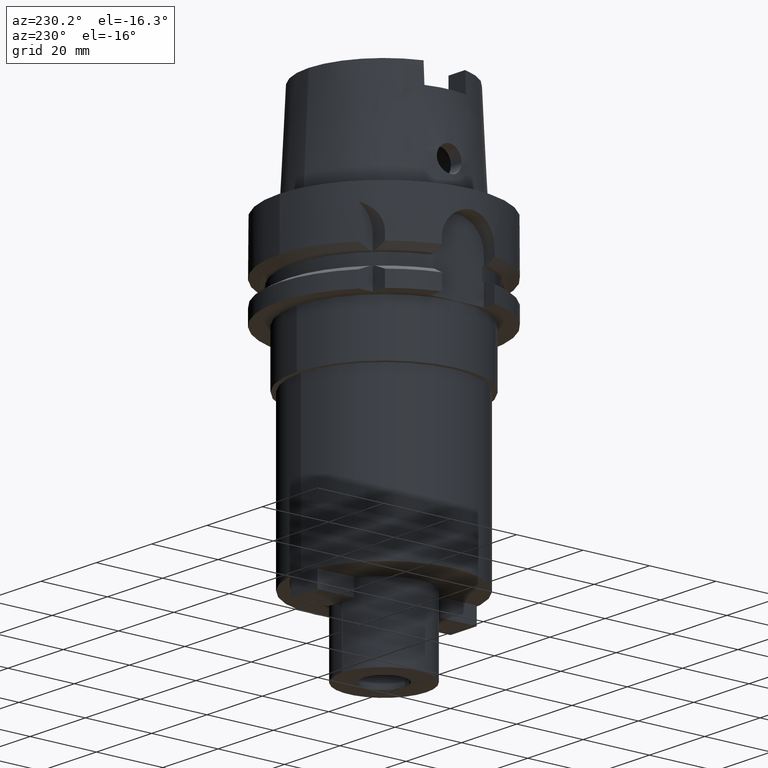
[diagram: clean part render]
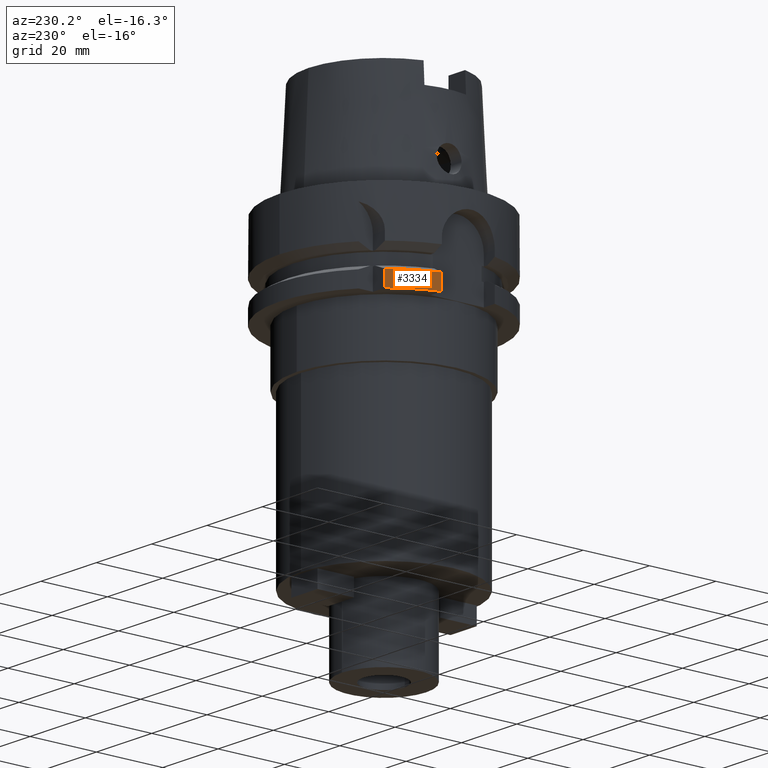
[diagram: same view with one face highlighted and labeled with its STEP entity id]
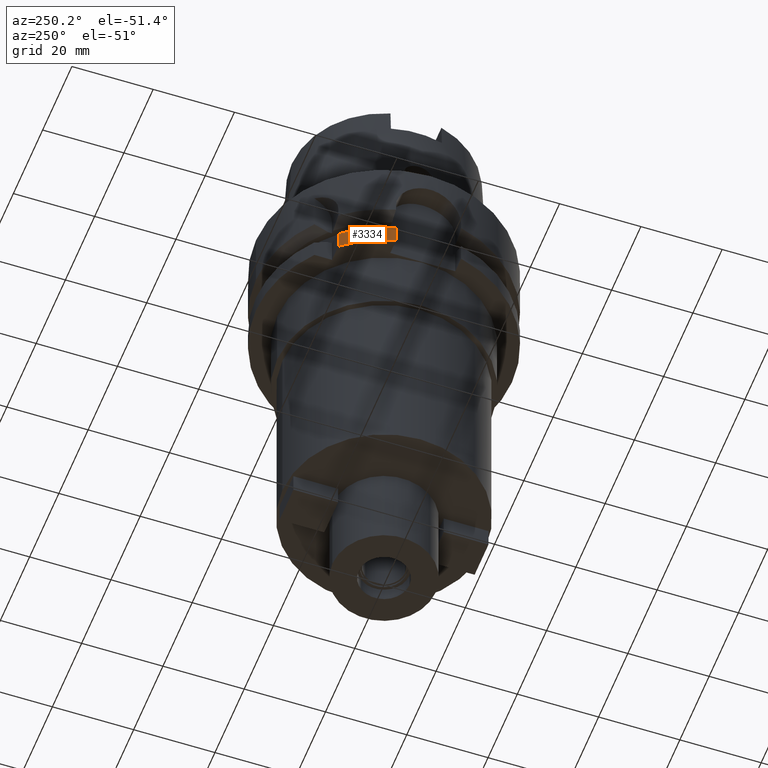
[diagram: same view with one face highlighted and labeled with its STEP entity id]
A machine part, auxiliary view. The second image highlights one B-rep face of the part: STEP entity #3334.
A second angle (auxiliary view) of the same face is appended — the face is thin or edge-on in the first view.
In plain terms, the highlighted cylindrical surface (partial cylindrical patch) has radius 31.5 mm, axis along (0, 0, 1).
Its self-contained STEP definition (entity closure, byte-faithful):
#702=CARTESIAN_POINT('',(0.E0,0.E0,-2.6E1));
#703=DIRECTION('',(0.E0,0.E0,1.E0));
#704=DIRECTION('',(-7.725773665802E-1,6.349206349206E-1,0.E0));
#705=AXIS2_PLACEMENT_3D('',#702,#703,#704);
#1257=DIRECTION('',(-5.375450050143E-7,-6.540899232592E-7,9.999999999996E-1));
#1258=VECTOR('',#1257,4.622511759294E0);
#1259=CARTESIAN_POINT('',(-2.433618704728E1,2.E1,-2.6E1));
#1260=LINE('',#1259,#1258);
#1264=DIRECTION('',(5.660814493600E-9,2.155833362122E-8,-1.E0));
#1265=VECTOR('',#1264,4.622501829904E0);
#1266=CARTESIAN_POINT('',(-3.046719549933E1,7.999999900347E0,
-2.137749817010E1));
#1267=LINE('',#1266,#1265);
#1295=CARTESIAN_POINT('',(0.E0,0.E0,-2.137749907476E1));
#1296=DIRECTION('',(0.E0,0.E0,-1.E0));
#1297=DIRECTION('',(-9.672125547036E-1,2.539682539683E-1,0.E0));
#1298=AXIS2_PLACEMENT_3D('',#1295,#1296,#1297);
#2337=CARTESIAN_POINT('',(-2.433618704728E1,2.E1,-2.6E1));
#2338=VERTEX_POINT('',#2337);
#2339=CARTESIAN_POINT('',(-3.046719547316E1,8.E0,-2.6E1));
#2340=VERTEX_POINT('',#2339);
#2383=CARTESIAN_POINT('',(-2.433618953209E1,1.999999697646E1,
-2.137748824071E1));
#2384=VERTEX_POINT('',#2383);
#2385=CARTESIAN_POINT('',(-3.046719547317E1,8.000000000001E0,
-2.137749907476E1));
#2386=VERTEX_POINT('',#2385);
#3321=CARTESIAN_POINT('',(0.E0,0.E0,-1.192E2));
#3322=DIRECTION('',(0.E0,0.E0,1.E0));
#3323=DIRECTION('',(0.E0,1.E0,0.E0));
#3324=AXIS2_PLACEMENT_3D('',#3321,#3322,#3323);
#3325=CYLINDRICAL_SURFACE('',#3324,3.15E1);
#3327=ORIENTED_EDGE('',*,*,#3326,.T.);
#3329=ORIENTED_EDGE('',*,*,#3328,.F.);
#3330=ORIENTED_EDGE('',*,*,#3312,.T.);
#3331=ORIENTED_EDGE('',*,*,#2954,.F.);
#3332=EDGE_LOOP('',(#3327,#3329,#3330,#3331));
#3333=FACE_OUTER_BOUND('',#3332,.F.);
#706=CIRCLE('',#705,3.15E1);
#1299=CIRCLE('',#1298,3.15E1);
#2954=EDGE_CURVE('',#2338,#2340,#706,.T.);
#3312=EDGE_CURVE('',#2386,#2340,#1267,.T.);
#3326=EDGE_CURVE('',#2338,#2384,#1260,.T.);
#3328=EDGE_CURVE('',#2386,#2384,#1299,.T.);
#3334=ADVANCED_FACE('',(#3333),#3325,.T.);